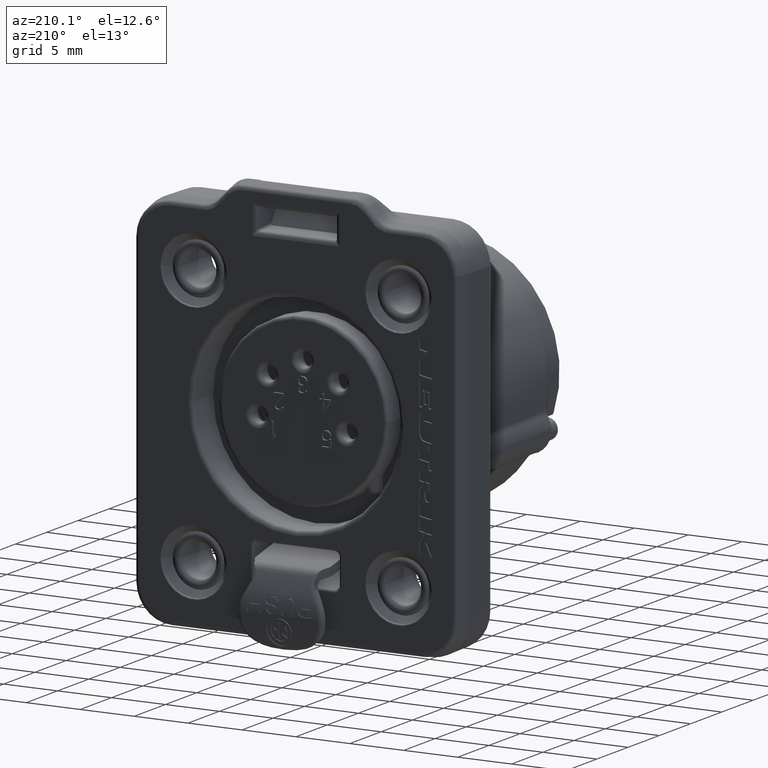
[diagram: clean part render]
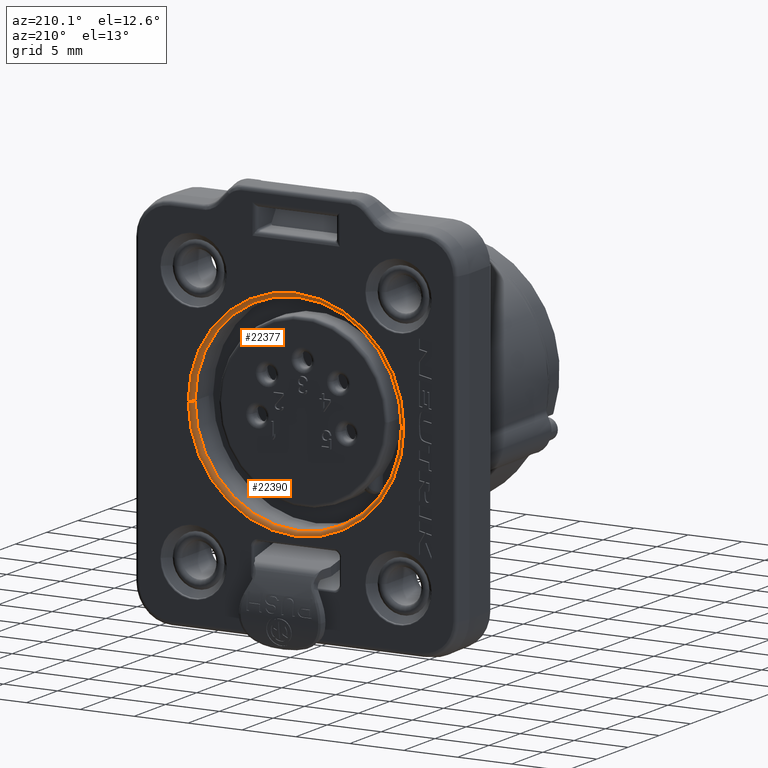
[diagram: same view with one multi-face feature highlighted, each face labeled with its STEP entity id]
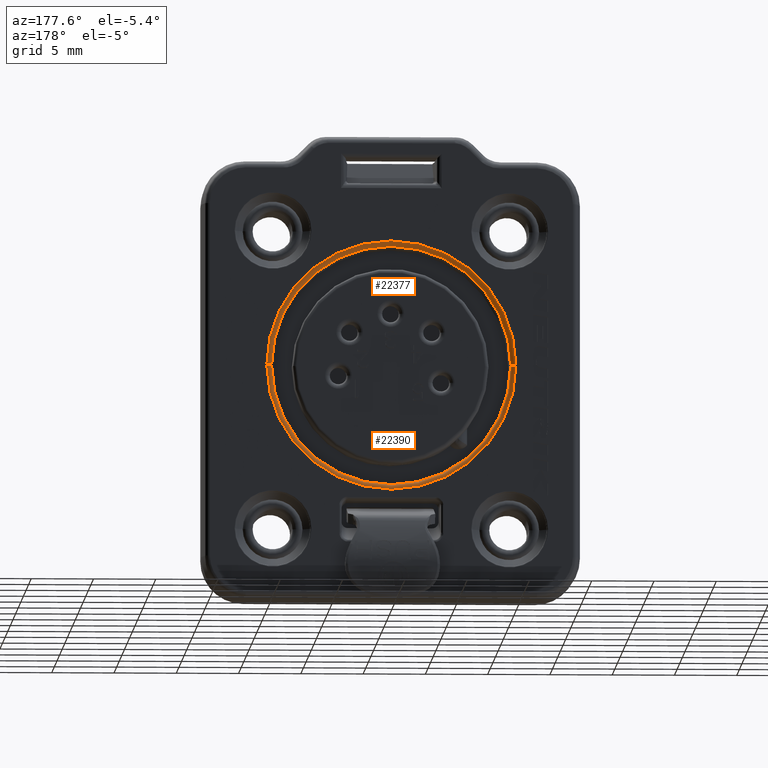
[diagram: same view with one multi-face feature highlighted, each face labeled with its STEP entity id]
A machine part, auxiliary view. The highlighted faces form ONE feature: a constant-radius fillet chain: 2 tangent blend faces with common blend radius 0.4 mm. The faces share edges in the B-rep.
A second angle (auxiliary view) of the same feature is appended — it is thin or edge-on in the first view.
Their STEP definitions:
[1] entity #22390 (Torus):
#3426=CARTESIAN_POINT('',(0.E0,4.1E0,1.2E0));
#3427=DIRECTION('',(0.E0,-1.E0,0.E0));
#3428=DIRECTION('',(-1.E0,0.E0,0.E0));
#3429=AXIS2_PLACEMENT_3D('',#3426,#3427,#3428);
#4289=CARTESIAN_POINT('',(1.E1,3.7E0,1.199999999993E0));
#4290=DIRECTION('',(6.756643855521E-13,0.E0,1.E0));
#4291=DIRECTION('',(-9.676259793423E-11,1.E0,0.E0));
#4292=AXIS2_PLACEMENT_3D('',#4289,#4290,#4291);
#4294=CARTESIAN_POINT('',(-1.E1,3.7E0,1.200000000007E0));
#4295=DIRECTION('',(-6.757996939832E-13,0.E0,-1.E0));
#4296=DIRECTION('',(9.675815704213E-11,1.E0,0.E0));
#4297=AXIS2_PLACEMENT_3D('',#4294,#4295,#4296);
#4313=CARTESIAN_POINT('',(0.E0,3.7E0,1.2E0));
#4314=DIRECTION('',(0.E0,-1.E0,0.E0));
#4315=DIRECTION('',(-1.E0,0.E0,0.E0));
#4316=AXIS2_PLACEMENT_3D('',#4313,#4314,#4315);
#14408=CARTESIAN_POINT('',(1.E1,4.1E0,1.2E0));
#14409=CARTESIAN_POINT('',(-1.E1,4.1E0,1.2E0));
#14410=VERTEX_POINT('',#14408);
#14411=VERTEX_POINT('',#14409);
#14412=CARTESIAN_POINT('',(9.6E0,3.7E0,1.2E0));
#14413=CARTESIAN_POINT('',(-9.6E0,3.7E0,1.2E0));
#14414=VERTEX_POINT('',#14412);
#14415=VERTEX_POINT('',#14413);
#22378=CARTESIAN_POINT('',(0.E0,3.7E0,1.2E0));
#22379=DIRECTION('',(0.E0,1.E0,0.E0));
#22380=DIRECTION('',(-9.998105770289E-1,0.E0,1.946304347204E-2));
#22381=AXIS2_PLACEMENT_3D('',#22378,#22379,#22380);
#22382=TOROIDAL_SURFACE('',#22381,1.E1,4.E-1);
#22383=ORIENTED_EDGE('',*,*,#21622,.T.);
#22384=ORIENTED_EDGE('',*,*,#22373,.T.);
#22386=ORIENTED_EDGE('',*,*,#22385,.F.);
#22387=ORIENTED_EDGE('',*,*,#22369,.F.);
#22388=EDGE_LOOP('',(#22383,#22384,#22386,#22387));
#22389=FACE_OUTER_BOUND('',#22388,.F.);
#22390=ADVANCED_FACE('',(#22389),#22382,.T.);
#3430=CIRCLE('',#3429,1.E1);
#4293=CIRCLE('',#4292,4.E-1);
#4298=CIRCLE('',#4297,4.E-1);
#4317=CIRCLE('',#4316,9.6E0);
#21622=EDGE_CURVE('',#14411,#14410,#3430,.T.);
#22369=EDGE_CURVE('',#14411,#14415,#4298,.T.);
#22373=EDGE_CURVE('',#14410,#14414,#4293,.T.);
#22385=EDGE_CURVE('',#14415,#14414,#4317,.T.);
[2] entity #22377 (Torus):
#3421=CARTESIAN_POINT('',(0.E0,4.1E0,1.2E0));
#3422=DIRECTION('',(0.E0,-1.E0,0.E0));
#3423=DIRECTION('',(1.E0,0.E0,0.E0));
#3424=AXIS2_PLACEMENT_3D('',#3421,#3422,#3423);
#4289=CARTESIAN_POINT('',(1.E1,3.7E0,1.199999999993E0));
#4290=DIRECTION('',(6.756643855521E-13,0.E0,1.E0));
#4291=DIRECTION('',(-9.676259793423E-11,1.E0,0.E0));
#4292=AXIS2_PLACEMENT_3D('',#4289,#4290,#4291);
#4294=CARTESIAN_POINT('',(-1.E1,3.7E0,1.200000000007E0));
#4295=DIRECTION('',(-6.757996939832E-13,0.E0,-1.E0));
#4296=DIRECTION('',(9.675815704213E-11,1.E0,0.E0));
#4297=AXIS2_PLACEMENT_3D('',#4294,#4295,#4296);
#6748=CARTESIAN_POINT('',(0.E0,3.7E0,1.2E0));
#6749=DIRECTION('',(0.E0,-1.E0,0.E0));
#6750=DIRECTION('',(1.E0,0.E0,0.E0));
#6751=AXIS2_PLACEMENT_3D('',#6748,#6749,#6750);
#14408=CARTESIAN_POINT('',(1.E1,4.1E0,1.2E0));
#14409=CARTESIAN_POINT('',(-1.E1,4.1E0,1.2E0));
#14410=VERTEX_POINT('',#14408);
#14411=VERTEX_POINT('',#14409);
#14412=CARTESIAN_POINT('',(9.6E0,3.7E0,1.2E0));
#14413=CARTESIAN_POINT('',(-9.6E0,3.7E0,1.2E0));
#14414=VERTEX_POINT('',#14412);
#14415=VERTEX_POINT('',#14413);
#22363=CARTESIAN_POINT('',(0.E0,3.7E0,1.2E0));
#22364=DIRECTION('',(0.E0,1.E0,0.E0));
#22365=DIRECTION('',(9.998105770289E-1,0.E0,-1.946304347204E-2));
#22366=AXIS2_PLACEMENT_3D('',#22363,#22364,#22365);
#22367=TOROIDAL_SURFACE('',#22366,1.E1,4.E-1);
#22368=ORIENTED_EDGE('',*,*,#21620,.T.);
#22370=ORIENTED_EDGE('',*,*,#22369,.T.);
#22372=ORIENTED_EDGE('',*,*,#22371,.F.);
#22374=ORIENTED_EDGE('',*,*,#22373,.F.);
#22375=EDGE_LOOP('',(#22368,#22370,#22372,#22374));
#22376=FACE_OUTER_BOUND('',#22375,.F.);
#22377=ADVANCED_FACE('',(#22376),#22367,.T.);
#3425=CIRCLE('',#3424,1.E1);
#4293=CIRCLE('',#4292,4.E-1);
#4298=CIRCLE('',#4297,4.E-1);
#6752=CIRCLE('',#6751,9.6E0);
#21620=EDGE_CURVE('',#14410,#14411,#3425,.T.);
#22369=EDGE_CURVE('',#14411,#14415,#4298,.T.);
#22371=EDGE_CURVE('',#14414,#14415,#6752,.T.);
#22373=EDGE_CURVE('',#14410,#14414,#4293,.T.);